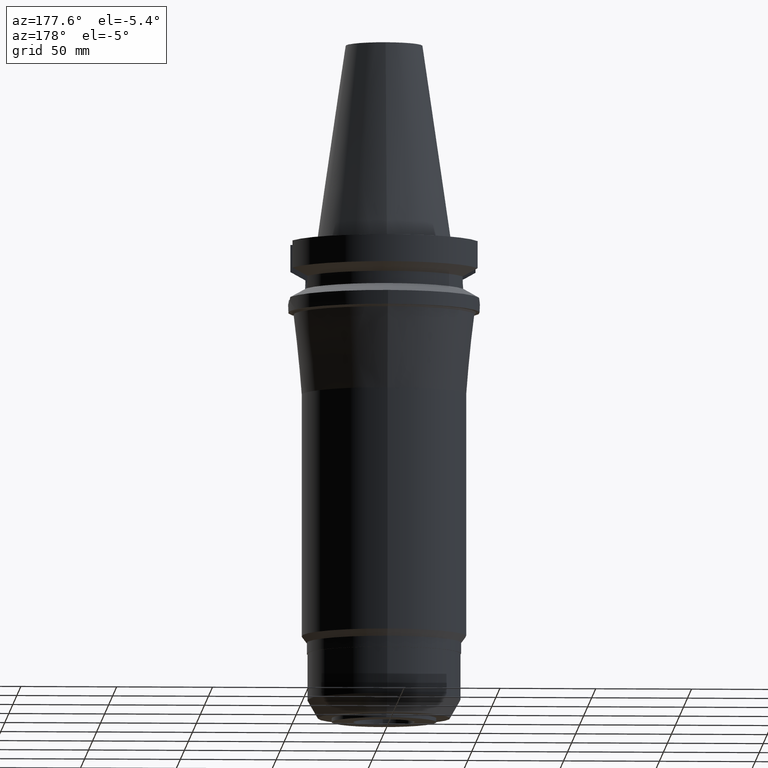
[diagram: clean part render]
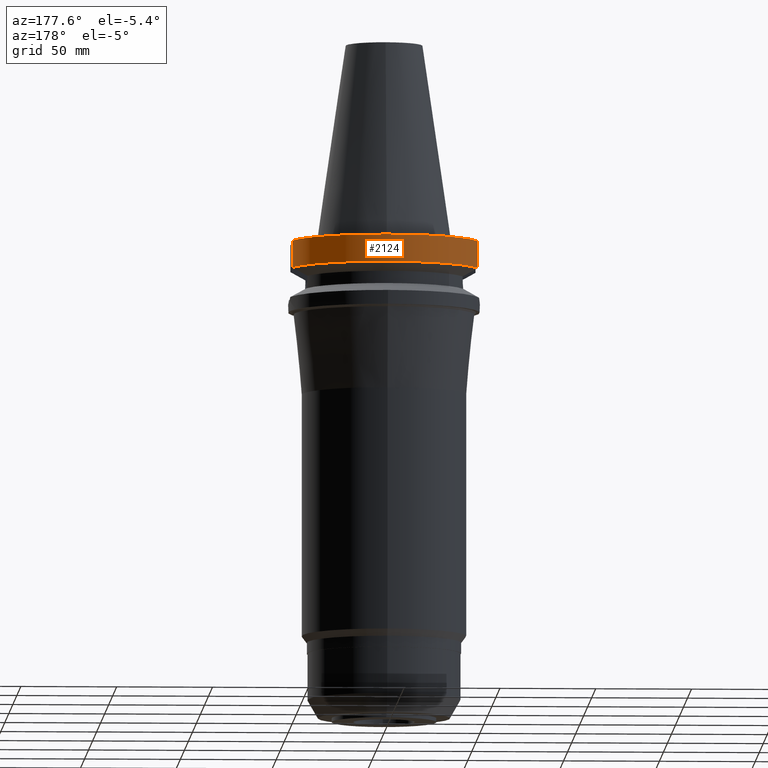
[diagram: same view with one face highlighted and labeled with its STEP entity id]
A machine part, auxiliary view. The second image highlights one B-rep face of the part: STEP entity #2124.
In plain terms, the highlighted cylindrical surface (partial cylindrical patch) has radius 50 mm, axis along (0, 0, -1).
Its self-contained STEP definition (entity closure, byte-faithful):
#740=CARTESIAN_POINT('',(4.832056912815E1,1.285000385726E1,-1.566265768273E1));
#794=CARTESIAN_POINT('',(0.E0,2.688222188808E-14,-1.5E0));
#795=DIRECTION('',(0.E0,0.E0,-1.E0));
#796=DIRECTION('',(-9.664114030784E-1,2.57E-1,0.E0));
#797=AXIS2_PLACEMENT_3D('',#794,#795,#796);
#802=CARTESIAN_POINT('',(0.E0,2.688222188808E-14,-1.5E0));
#803=DIRECTION('',(0.E0,0.E0,-1.E0));
#804=DIRECTION('',(0.E0,1.E0,0.E0));
#805=AXIS2_PLACEMENT_3D('',#802,#803,#804);
#998=CARTESIAN_POINT('',(-4.832056912781E1,1.285000385852E1,-1.566265767139E1));
#1019=CARTESIAN_POINT('',(0.E0,1.006319759054E-14,-1.566269223573E1));
#1020=DIRECTION('',(0.E0,0.E0,1.E0));
#1021=DIRECTION('',(9.664114030784E-1,2.57E-1,0.E0));
#1022=AXIS2_PLACEMENT_3D('',#1019,#1020,#1021);
#1027=CARTESIAN_POINT('',(0.E0,1.006319759054E-14,-1.566269223573E1));
#1028=DIRECTION('',(0.E0,0.E0,1.E0));
#1029=DIRECTION('',(0.E0,1.E0,0.E0));
#1030=AXIS2_PLACEMENT_3D('',#1027,#1028,#1029);
#1035=DIRECTION('',(7.245155820130E-8,2.724434502920E-7,-1.E0));
#1036=VECTOR('',#1035,1.416265767139E1);
#1037=CARTESIAN_POINT('',(-4.832057015392E1,1.285E1,-1.5E0));
#1038=LINE('',#1037,#1036);
#1042=DIRECTION('',(7.242780307648E-8,-2.723541219870E-7,1.E0));
#1043=VECTOR('',#1042,1.416265768273E1);
#1044=CARTESIAN_POINT('',(4.832056912815E1,1.285000385726E1,-1.566265768273E1));
#1045=LINE('',#1044,#1043);
#1264=CARTESIAN_POINT('',(-4.832057015392E1,1.285E1,-1.5E0));
#1265=VERTEX_POINT('',#1264);
#1266=CARTESIAN_POINT('',(-1.065814103640E-14,5.E1,-1.5E0));
#1267=CARTESIAN_POINT('',(4.832057015392E1,1.285E1,-1.5E0));
#1268=VERTEX_POINT('',#1266);
#1269=VERTEX_POINT('',#1267);
#1290=VERTEX_POINT('',#998);
#1295=VERTEX_POINT('',#740);
#1296=CARTESIAN_POINT('',(0.E0,5.E1,-1.566269223573E1));
#1297=VERTEX_POINT('',#1296);
#2111=CARTESIAN_POINT('',(0.E0,2.688222188808E-14,1.1951E2));
#2112=DIRECTION('',(0.E0,0.E0,-1.E0));
#2113=DIRECTION('',(0.E0,-1.E0,0.E0));
#2114=AXIS2_PLACEMENT_3D('',#2111,#2112,#2113);
#2115=CYLINDRICAL_SURFACE('',#2114,5.E1);
#2116=ORIENTED_EDGE('',*,*,#2087,.T.);
#2117=ORIENTED_EDGE('',*,*,#2106,.F.);
#2118=ORIENTED_EDGE('',*,*,#2104,.F.);
#2119=ORIENTED_EDGE('',*,*,#1928,.T.);
#2120=ORIENTED_EDGE('',*,*,#1961,.F.);
#2121=ORIENTED_EDGE('',*,*,#1959,.F.);
#2122=EDGE_LOOP('',(#2116,#2117,#2118,#2119,#2120,#2121));
#2123=FACE_OUTER_BOUND('',#2122,.F.);
#798=CIRCLE('',#797,5.E1);
#806=CIRCLE('',#805,5.E1);
#1023=CIRCLE('',#1022,5.E1);
#1031=CIRCLE('',#1030,5.E1);
#1928=EDGE_CURVE('',#1295,#1269,#1045,.T.);
#1959=EDGE_CURVE('',#1265,#1268,#798,.T.);
#1961=EDGE_CURVE('',#1268,#1269,#806,.T.);
#2087=EDGE_CURVE('',#1265,#1290,#1038,.T.);
#2104=EDGE_CURVE('',#1295,#1297,#1023,.T.);
#2106=EDGE_CURVE('',#1297,#1290,#1031,.T.);
#2124=ADVANCED_FACE('',(#2123),#2115,.T.);